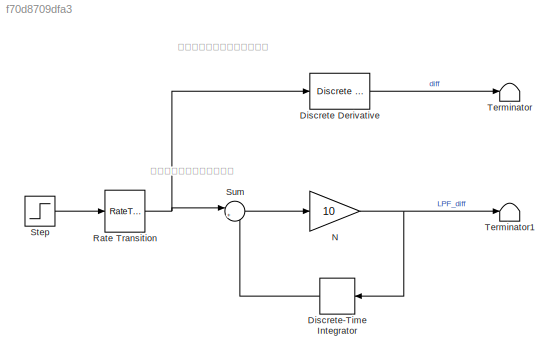
MODEL slx_f70d8709dfa3
KIND model
CONFIG AbsTol = auto
CONFIG EnableMultiTasking = off
CONFIG FixedStep = auto
CONFIG MaxStep = auto
CONFIG MinStep = auto
CONFIG RelTol = 1e-3
CONFIG SampleTimeConstraint = Unconstrained
CONFIG SolverName = VariableStepAuto
CONFIG StartTime = 0.0
CONFIG StopTime = 5
BLOCK [Reference] Discrete Derivative  REF=simulink/Discrete/Discrete Derivative
  SourceBlock = simulink/Discrete/Discrete Derivative
  SourceType = Discrete Derivative
BLOCK [DiscreteIntegrator] Discrete-Time Integrator
  ICPrevOutput = DiscIntNeverNeededParam
  ICPrevScaledInput = DiscIntNeverNeededParam
  InitialConditionSetting = Auto
  SampleTime = -1
BLOCK [Gain] N
  Gain = 10
BLOCK [RateTransition] Rate Transition
  OutPortSampleTime = 0.01
BLOCK [Step] Step
  SampleTime = 0
BLOCK [Sum] Sum
  Inputs = |+-
BLOCK [Terminator] Terminator
BLOCK [Terminator] Terminator1
ANNOTATION (root): 不完全微分器（離散時間）
ANNOTATION (root): 理想的な微分器（離散時間）
LINE Discrete Derivative:1 -> Terminator:1
LINE Discrete-Time Integrator:1 -> Sum:2
NET N:1 -> Discrete-Time Integrator:1, Terminator1:1
NET Rate Transition:1 -> Discrete Derivative:1, Sum:1
LINE Step:1 -> Rate Transition:1
LINE Sum:1 -> N:1
note: NET lines group one-source signal fan-out (src -> all destinations, sorted); 1:1 wires keep LINE
